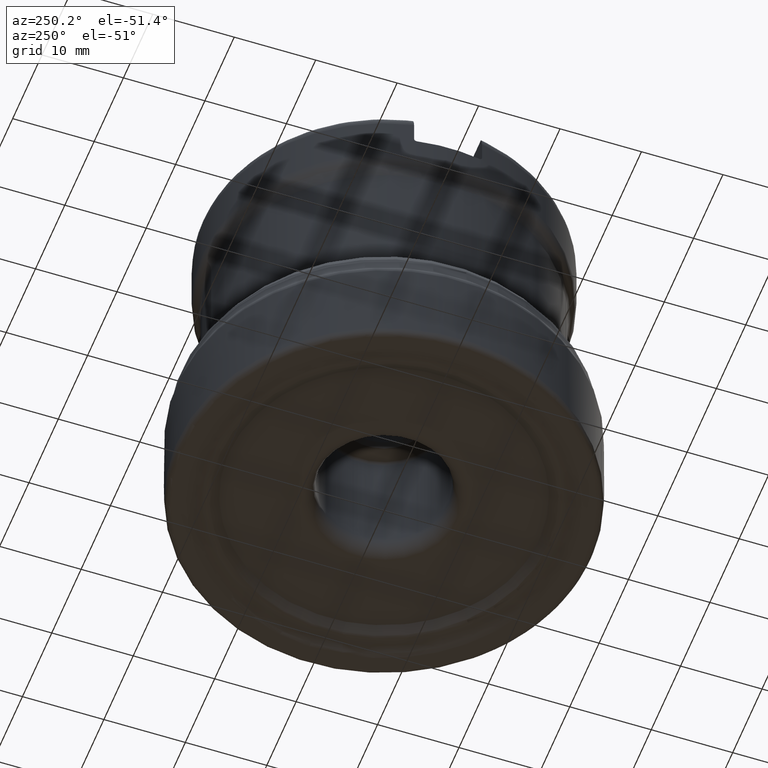
[diagram: clean part render]
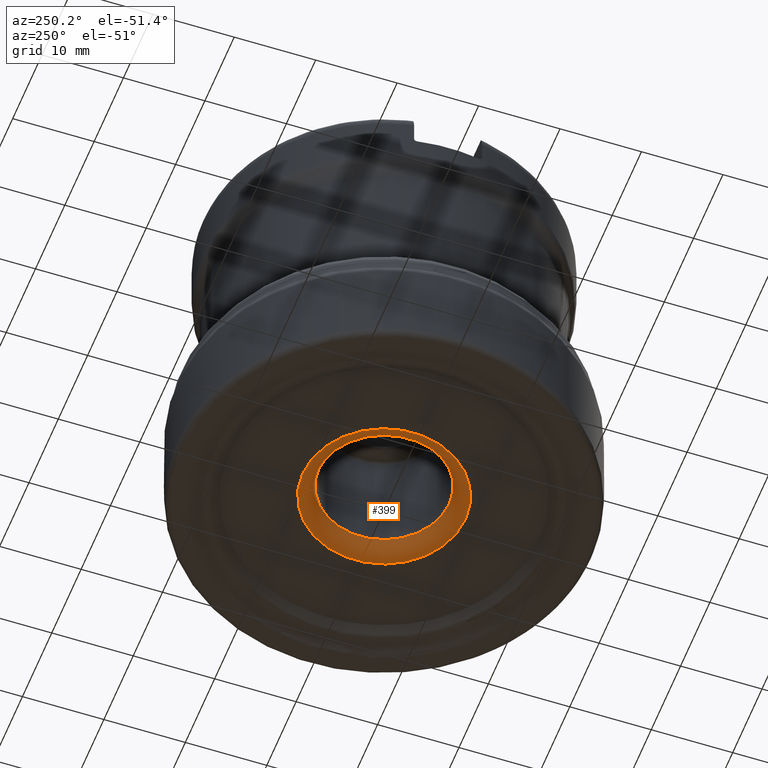
[diagram: same view with one face highlighted and labeled with its STEP entity id]
A machine part, auxiliary view. The second image highlights one B-rep face of the part: STEP entity #399.
In plain terms, the highlighted toroidal blend (fillet) surface has major radius 10 mm and minor (blend) radius 2 mm.
Its self-contained STEP definition (entity closure, byte-faithful):
#264=FACE_BOUND('',#539,.T.);
#265=FACE_BOUND('',#540,.T.);
#399=ADVANCED_FACE('',(#264,#265),#489,.T.);
#489=TOROIDAL_SURFACE('',#1464,10.,2.);
#539=EDGE_LOOP('',(#709));
#540=EDGE_LOOP('',(#710));
#709=ORIENTED_EDGE('',*,*,#1148,.F.);
#710=ORIENTED_EDGE('',*,*,#1149,.F.);
#1023=VERTEX_POINT('',#2411);
#1024=VERTEX_POINT('',#2413);
#1148=EDGE_CURVE('',#1023,#1023,#1297,.T.);
#1149=EDGE_CURVE('',#1024,#1024,#1298,.T.);
#1297=CIRCLE('',#1462,8.);
#1298=CIRCLE('',#1463,10.);
#1462=AXIS2_PLACEMENT_3D('',#2410,#1627,#1628);
#1463=AXIS2_PLACEMENT_3D('',#2412,#1629,#1630);
#1464=AXIS2_PLACEMENT_3D('',#2414,#1631,#1632);
#1627=DIRECTION('',(0.,-1.17145536458252E-15,-1.));
#1628=DIRECTION('',(0.,1.,-1.19262238973405E-15));
#1629=DIRECTION('',(0.,1.17145536458252E-15,1.));
#1630=DIRECTION('',(0.,1.,-1.17093834628434E-15));
#1631=DIRECTION('',(0.,-1.17145536458252E-15,-1.));
#1632=DIRECTION('',(0.,1.,-1.15648231731787E-15));
#2410=CARTESIAN_POINT('',(0.,3.98294823958058E-15,3.4));
#2411=CARTESIAN_POINT('',(0.,8.00000000000001,3.39999999999999));
#2412=CARTESIAN_POINT('',(0.,1.64003751041554E-15,1.4));
#2413=CARTESIAN_POINT('',(0.,10.,1.39999999999999));
#2414=CARTESIAN_POINT('',(0.,3.98294823958058E-15,3.4));